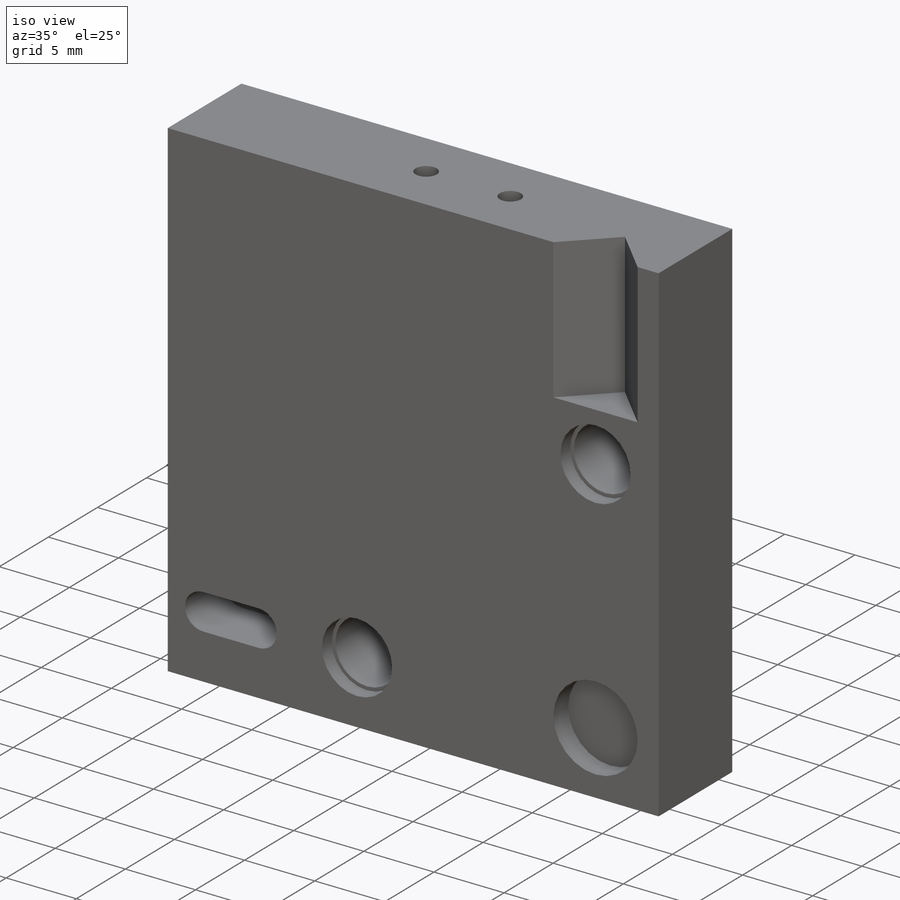
[diagram: iso view]
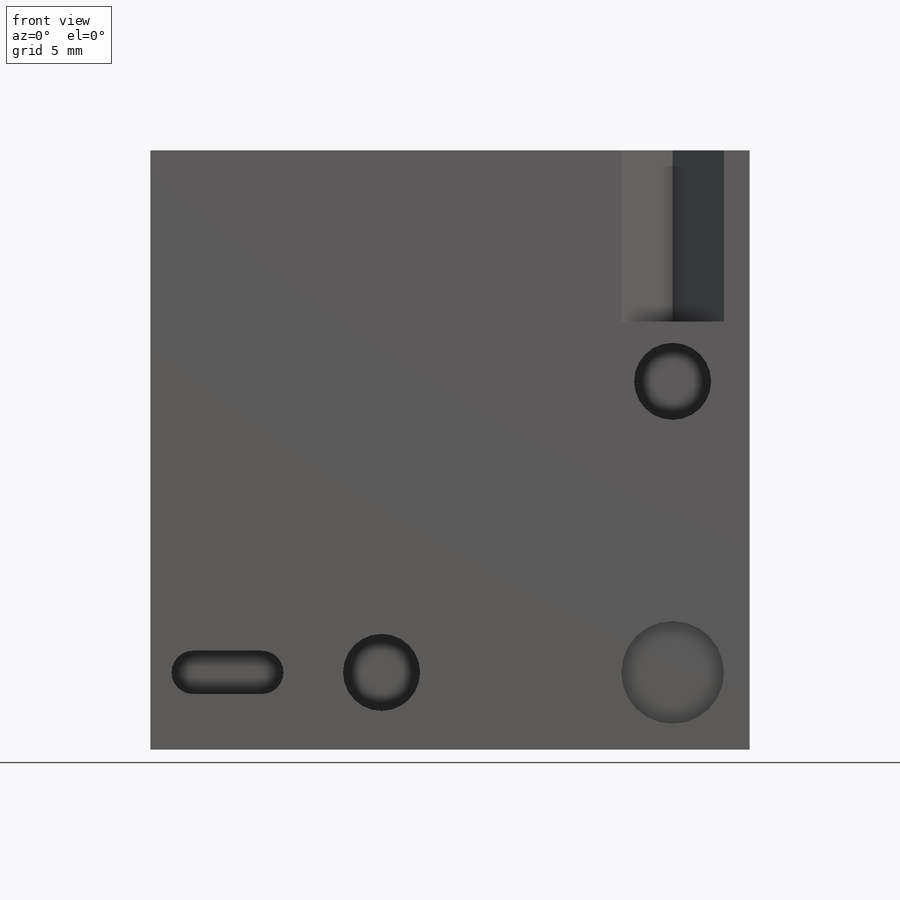
[diagram: front view]
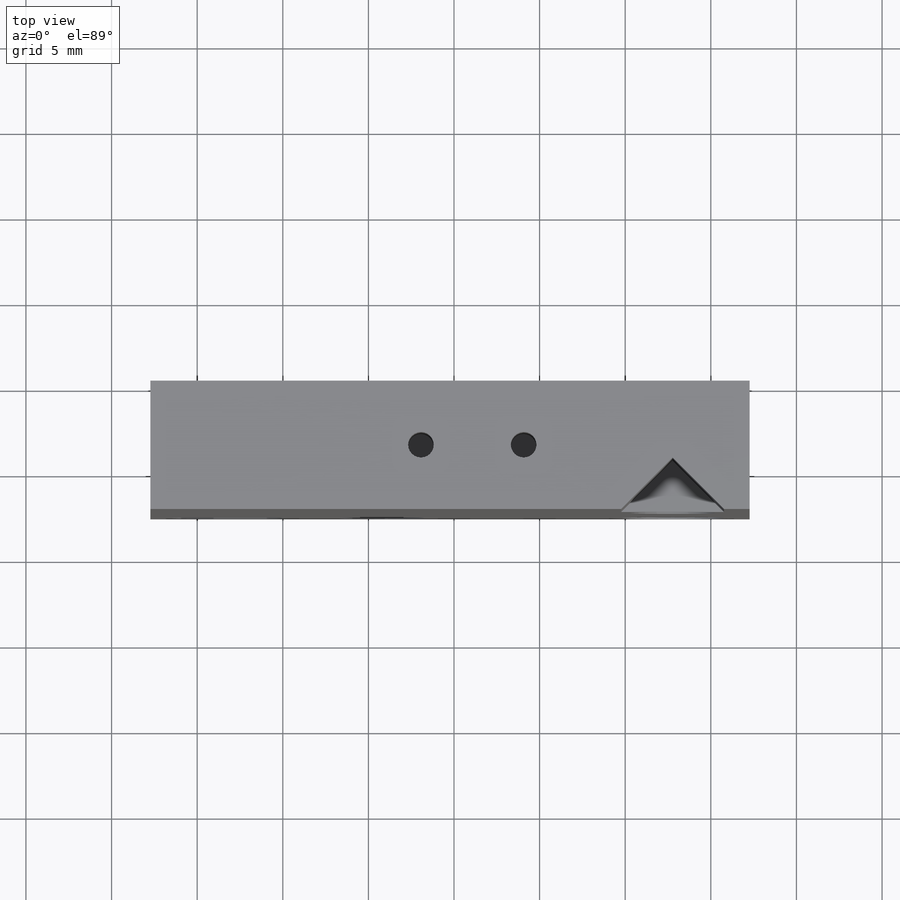
[diagram: top view]
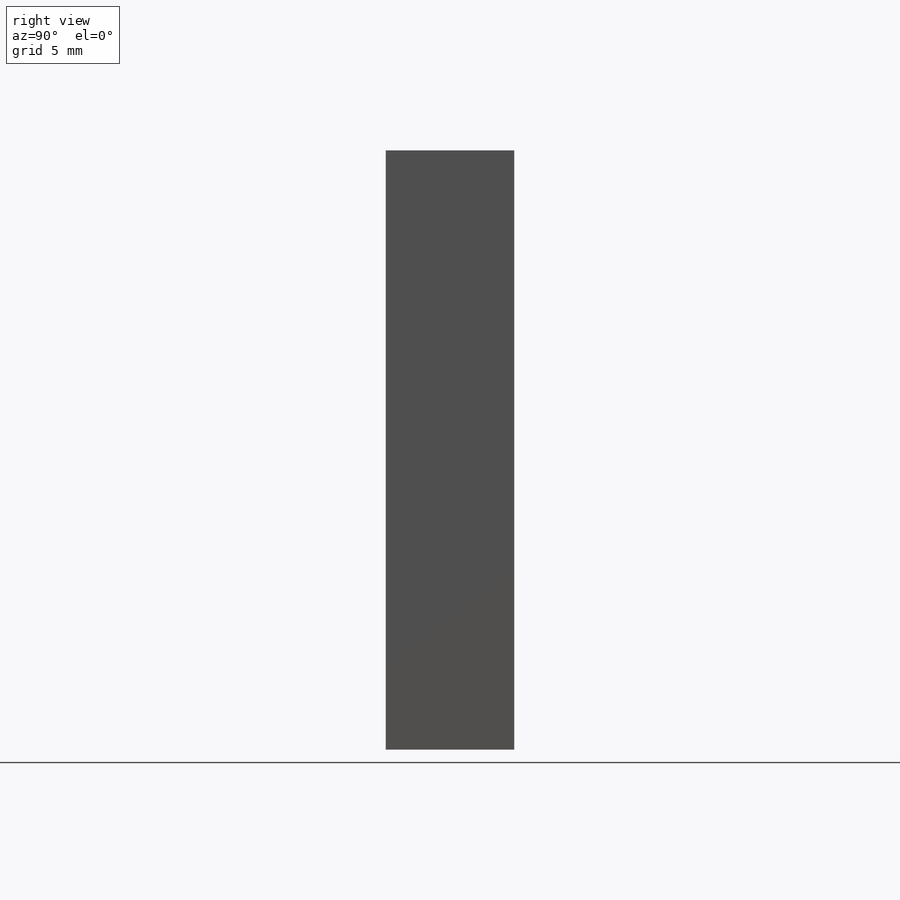
[diagram: right view]
SOLIDWORKS PART (.sldprt)
format: sldprt  version: not decoded by parser v0  size: 557,056 bytes
history: native  units: mm
features: sketch x10, cut_extrude x8, extrude x2, material x1 (+11 scaffold rows collapsed)
feature tree (32):
  scaffold x11  (default folders/planes/origin — collapsed)
  material  "Material <not specified>"
  sketch  "Sketch1"  dims[D1=35.0mm D2=35.0mm]
  extrude  "Boss-Extrude1"  Depth=7.5mm
  sketch  "Sketch2"  dims[D1=13.0mm D2=11.0mm D3=11.0mm]
  cut_extrude  "Cut-Extrude2"  Depth=5mm
  sketch  "Sketch4"  dims[c1.D3=7.5mm c1.D5=7.5mm c1.D7=~9.009769mm c1.D8=8.0mm c1.D9=7.5mm c2.D3=7.5mm c2.D1=4.5mm c2.D2=4.5mm c2.D4=4.5mm c2.D6=4.5mm c2.D7=4.5mm c2.D8=4.5mm c3.D1=4.5mm c3.D2=~6.61462mm c4.D2=90.0deg c5.D2=4.5mm c5.D3=4.0mm c5.D4=2.54mm]
  sketch  "Sketch5"  dims[D5=5.0mm D6=5.0mm D1=21.5mm D2=21.5mm D3=4.5mm D4=4.5mm]
  sketch  "Sketch10"  dims[c1.D1=~4.164454mm c1.D2=1.5mm c1.D3=1.5mm c1.D4=1.5mm c1.D5=1.5mm c1.D6=1.5mm c2.D1=13.2mm c2.D4=3.75mm c2.D5=3.75mm c2.D6=6.0mm]
  cut_extrude  "Cut-Extrude7"  Depth=7mm
  cut_extrude  "Cut-Extrude11"  Depth=1mm
  sketch  "Sketch11"  dims[D1=4.5mm D2=4.5mm]
  cut_extrude  "Cut-Extrude12"  Depth=5mm
  sketch  "Sketch13"  dims[c1.D1=~3.526169mm c2.D1=90.0deg c3.D1=3.0mm c3.D2=~1.593745mm c4.D2=135.0deg c4.D3=3.0mm c5.D3=135.0deg c6.D3=4.5mm]
  cut_extrude  "Cut-Extrude13"  Depth=10mm
  sketch  "Sketch15"  dims[D1=0.0mm D2=0.0mm D3=0.0mm]
  cut_extrude  "Cut-Extrude14"  Depth=10mm
  cut_extrude  "Cut-Extrude15"  Depth=4mm
  sketch  "Sketch16"
  extrude  "Boss-Extrude2"  Depth=10mm
  sketch  "Sketch17"  dims[D1=6.0mm D2=4.5mm D3=4.5mm]
  cut_extrude  "Cut-Extrude16"  Depth=1.5mm
decode coverage: 19 of 20 modeling features carry decoded parameters
note: ~ marks probable driven/reference dimensions
note: suppression state not decoded; provenance and decode notes live in map.json
